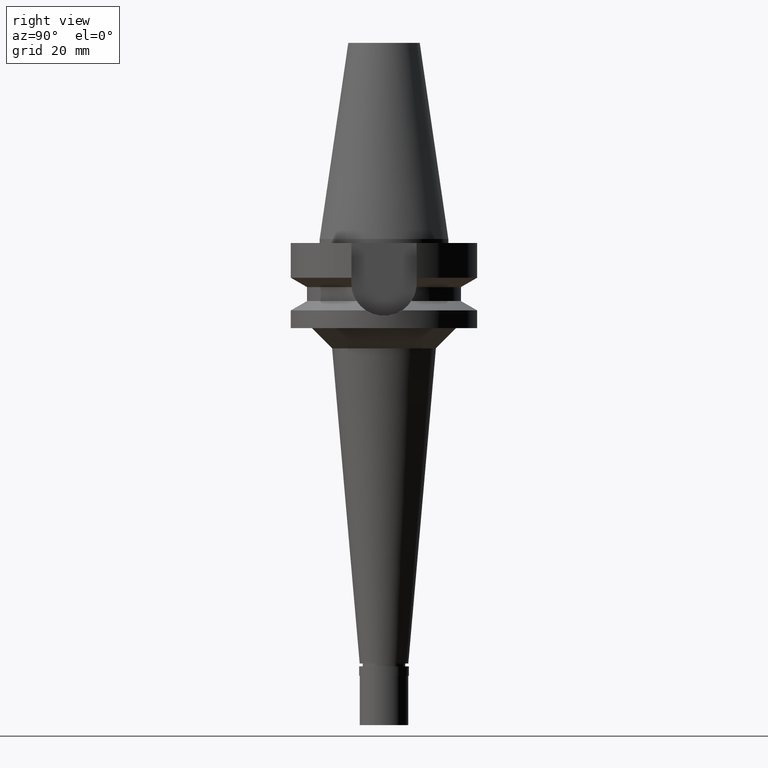
[diagram: clean part render]
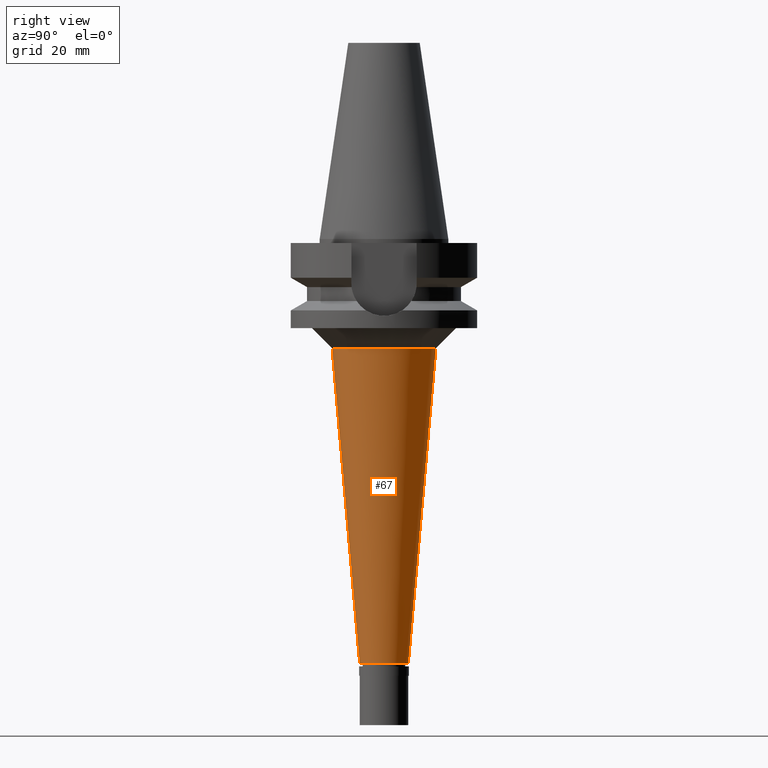
[diagram: same view with one face highlighted and labeled with its STEP entity id]
A machine part, right view. The second image highlights one B-rep face of the part: STEP entity #67.
In plain terms, the highlighted conical surface has half-angle 5 deg.
Its self-contained STEP definition (entity closure, byte-faithful):
#65 = FACE_OUTER_BOUND ( 'NONE', #73, .T. ) ;
#67 = ADVANCED_FACE ( 'NONE', ( #65 ), #96, .T. ) ;
#73 = EDGE_LOOP ( 'NONE', ( #989, #1693, #1378, #2153 ) ) ;
#96 = CONICAL_SURFACE ( 'NONE', #192, 9.403309011158000885, 0.08726646259969973729 ) ;
#192 = AXIS2_PLACEMENT_3D ( 'NONE', #975, #2214, #2899 ) ;
#250 = EDGE_CURVE ( 'NONE', #860, #1350, #1287, .T. ) ;
#324 = VERTEX_POINT ( 'NONE', #1671 ) ;
#366 = VECTOR ( 'NONE', #2686, 1000.000000000000227 ) ;
#413 = CARTESIAN_POINT ( 'NONE',  ( 0.0000000000000000000, -12.80661802232000035, -27.00000000000000000 ) ) ;
#448 = CARTESIAN_POINT ( 'NONE',  ( 0.0000000000000000000, 12.80661802232000035, -27.00000000000000000 ) ) ;
#603 = CARTESIAN_POINT ( 'NONE',  ( 0.0000000000000000000, 12.80661802232000035, -27.00000000000000000 ) ) ;
#635 = AXIS2_PLACEMENT_3D ( 'NONE', #1633, #1836, #2256 ) ;
#860 = VERTEX_POINT ( 'NONE', #1106 ) ;
#861 = VERTEX_POINT ( 'NONE', #2707 ) ;
#975 = CARTESIAN_POINT ( 'NONE',  ( 0.0000000000000000000, 0.0000000000000000000, -65.90000000000000568 ) ) ;
#989 = ORIENTED_EDGE ( 'NONE', *, *, #250, .F. ) ;
#1106 = CARTESIAN_POINT ( 'NONE',  ( 0.0000000000000000000, -12.80661802232000035, -27.00000000000000000 ) ) ;
#1127 = DIRECTION ( 'NONE',  ( 0.0000000000000000000, 0.0000000000000000000, 1.000000000000000000 ) ) ;
#1183 = DIRECTION ( 'NONE',  ( 0.0000000000000000000, -0.08715574274768382590, -0.9961946980917432137 ) ) ;
#1287 = CIRCLE ( 'NONE', #2960, 12.80661802232000035 ) ;
#1336 = LINE ( 'NONE', #413, #366 ) ;
#1350 = VERTEX_POINT ( 'NONE', #603 ) ;
#1378 = ORIENTED_EDGE ( 'NONE', *, *, #2539, .T. ) ;
#1616 = CIRCLE ( 'NONE', #635, 6.000000000000000000 ) ;
#1633 = CARTESIAN_POINT ( 'NONE',  ( 0.0000000000000000000, 0.0000000000000000000, -104.8000000000000114 ) ) ;
#1671 = CARTESIAN_POINT ( 'NONE',  ( 0.0000000000000000000, 6.000000000000000000, -104.8000000000000114 ) ) ;
#1693 = ORIENTED_EDGE ( 'NONE', *, *, #1837, .T. ) ;
#1836 = DIRECTION ( 'NONE',  ( 0.0000000000000000000, 0.0000000000000000000, 1.000000000000000000 ) ) ;
#1837 = EDGE_CURVE ( 'NONE', #860, #861, #1336, .T. ) ;
#1887 = CARTESIAN_POINT ( 'NONE',  ( 0.0000000000000000000, 0.0000000000000000000, -27.00000000000000000 ) ) ;
#2151 = EDGE_CURVE ( 'NONE', #1350, #324, #2508, .T. ) ;
#2153 = ORIENTED_EDGE ( 'NONE', *, *, #2151, .F. ) ;
#2214 = DIRECTION ( 'NONE',  ( 0.0000000000000000000, 0.0000000000000000000, 1.000000000000000000 ) ) ;
#2256 = DIRECTION ( 'NONE',  ( 0.0000000000000000000, -1.000000000000000000, 0.0000000000000000000 ) ) ;
#2508 = LINE ( 'NONE', #448, #2652 ) ;
#2539 = EDGE_CURVE ( 'NONE', #861, #324, #1616, .T. ) ;
#2652 = VECTOR ( 'NONE', #1183, 1000.000000000000227 ) ;
#2686 = DIRECTION ( 'NONE',  ( 0.0000000000000000000, 0.08715574274768382590, -0.9961946980917432137 ) ) ;
#2707 = CARTESIAN_POINT ( 'NONE',  ( 0.0000000000000000000, -6.000000000000000000, -104.8000000000000114 ) ) ;
#2717 = DIRECTION ( 'NONE',  ( 0.0000000000000000000, -1.000000000000000000, 0.0000000000000000000 ) ) ;
#2899 = DIRECTION ( 'NONE',  ( 0.0000000000000000000, 1.000000000000000000, 0.0000000000000000000 ) ) ;
#2960 = AXIS2_PLACEMENT_3D ( 'NONE', #1887, #1127, #2717 ) ;